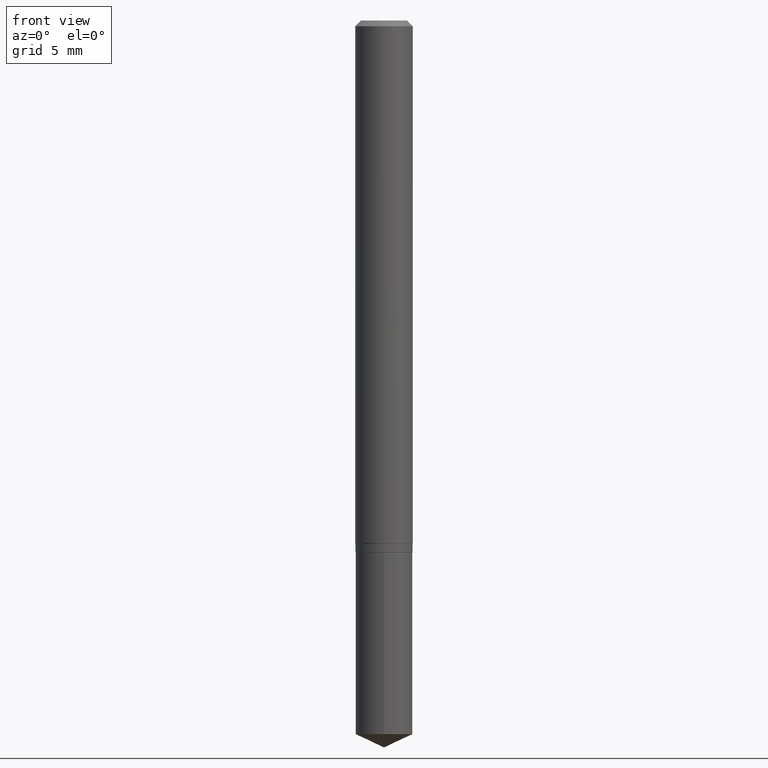
[diagram: clean part render]
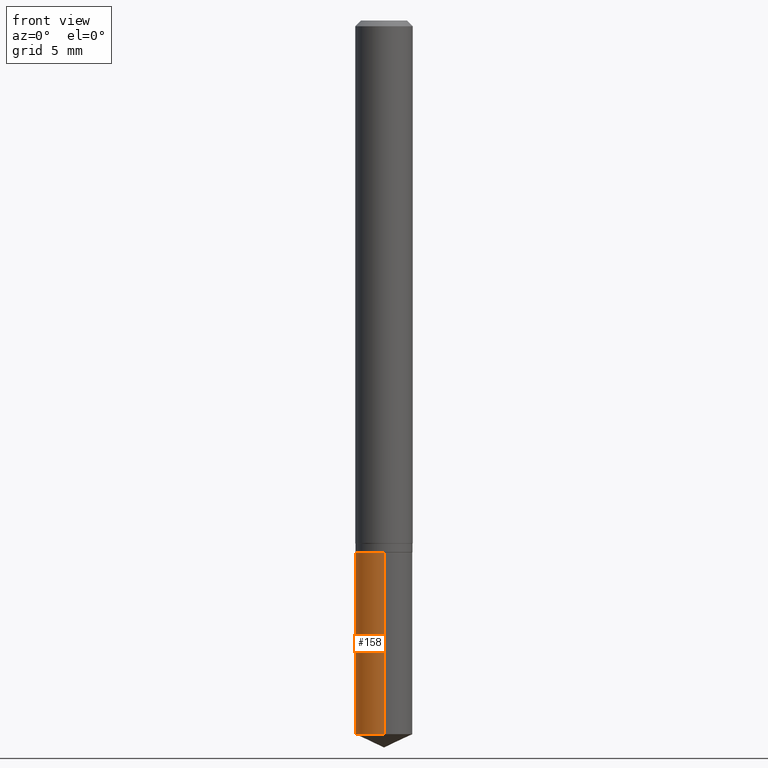
[diagram: same view with one face highlighted and labeled with its STEP entity id]
A machine part, front view. The second image highlights one B-rep face of the part: STEP entity #158.
In plain terms, the highlighted cylindrical surface (edge-blend (fillet) strip) has radius 1.4897 mm, axis along (-0, 0, 1).
Its self-contained STEP definition (entity closure, byte-faithful):
#24 = CARTESIAN_POINT ( 'NONE',  ( -4.095507610462727564E-16, -0.05865000000000382407, -1.094499999999999806 ) ) ;
#51 = DIRECTION ( 'NONE',  ( -6.982962677686266711E-15, -1.000000000000000000, 2.328941171069278199E-15 ) ) ;
#52 = DIRECTION ( 'NONE',  ( -2.445458899330790108E-29, 3.491495526022433205E-15, 1.000000000000000000 ) ) ;
#57 = AXIS2_PLACEMENT_3D ( 'NONE', #406, #52, #326 ) ;
#80 = CARTESIAN_POINT ( 'NONE',  ( 2.676565608369631794E-29, -3.821426325363822773E-15, -1.094499999999999806 ) ) ;
#83 = CARTESIAN_POINT ( 'NONE',  ( 4.167333145233346575E-16, 0.05864999999999617741, -1.094500000000000028 ) ) ;
#86 = CARTESIAN_POINT ( 'NONE',  ( 2.676565608369631794E-29, -3.821426325363822773E-15, -1.094499999999999806 ) ) ;
#137 = VERTEX_POINT ( 'NONE', #471 ) ;
#147 = ORIENTED_EDGE ( 'NONE', *, *, #208, .F. ) ;
#148 = DIRECTION ( 'NONE',  ( -2.445458899330790108E-29, 3.491495526022433599E-15, 1.000000000000000000 ) ) ;
#149 = EDGE_CURVE ( 'NONE', #373, #248, #306, .T. ) ;
#153 = AXIS2_PLACEMENT_3D ( 'NONE', #86, #242, #51 ) ;
#155 = ORIENTED_EDGE ( 'NONE', *, *, #334, .T. ) ;
#158 = ADVANCED_FACE ( 'NONE', ( #432 ), #189, .T. ) ;
#179 = DIRECTION ( 'NONE',  ( -2.445458899330790108E-29, 3.491495526022433205E-15, 1.000000000000000000 ) ) ;
#189 = CYLINDRICAL_SURFACE ( 'NONE', #210, 0.05865000000000000074 ) ;
#208 = EDGE_CURVE ( 'NONE', #248, #231, #335, .T. ) ;
#210 = AXIS2_PLACEMENT_3D ( 'NONE', #80, #179, #351 ) ;
#221 = CARTESIAN_POINT ( 'NONE',  ( 4.167333145233254377E-16, 0.05864999999999617741, -1.094500000000000028 ) ) ;
#231 = VERTEX_POINT ( 'NONE', #317 ) ;
#242 = DIRECTION ( 'NONE',  ( -2.445458899330790108E-29, 3.491495526022433205E-15, 1.000000000000000000 ) ) ;
#248 = VERTEX_POINT ( 'NONE', #83 ) ;
#260 = VECTOR ( 'NONE', #148, 39.37007874015748143 ) ;
#298 = ORIENTED_EDGE ( 'NONE', *, *, #440, .T. ) ;
#306 = LINE ( 'NONE', #221, #260 ) ;
#316 = EDGE_LOOP ( 'NONE', ( #380, #298, #155, #147 ) ) ;
#317 = CARTESIAN_POINT ( 'NONE',  ( -4.095507610462727564E-16, -0.05865000000000382407, -1.094499999999999806 ) ) ;
#323 = DIRECTION ( 'NONE',  ( -2.445458899330790108E-29, 3.491495526022433599E-15, 1.000000000000000000 ) ) ;
#326 = DIRECTION ( 'NONE',  ( -6.982962677686266711E-15, -1.000000000000000000, 4.657882342138556398E-15 ) ) ;
#334 = EDGE_CURVE ( 'NONE', #137, #231, #358, .T. ) ;
#335 = CIRCLE ( 'NONE', #153, 0.05865000000000000074 ) ;
#351 = DIRECTION ( 'NONE',  ( -6.982962677686266711E-15, -1.000000000000000000, 2.328941171069278199E-15 ) ) ;
#355 = CARTESIAN_POINT ( 'NONE',  ( 4.167333145233346575E-16, 0.05864999999999487984, -1.468751055849209841 ) ) ;
#358 = LINE ( 'NONE', #24, #397 ) ;
#373 = VERTEX_POINT ( 'NONE', #355 ) ;
#378 = CIRCLE ( 'NONE', #57, 0.05865000000000000074 ) ;
#380 = ORIENTED_EDGE ( 'NONE', *, *, #149, .F. ) ;
#397 = VECTOR ( 'NONE', #323, 39.37007874015748143 ) ;
#406 = CARTESIAN_POINT ( 'NONE',  ( 3.591781183480025262E-29, -5.128122212470508622E-15, -1.468751055849209397 ) ) ;
#432 = FACE_OUTER_BOUND ( 'NONE', #316, .T. ) ;
#440 = EDGE_CURVE ( 'NONE', #373, #137, #378, .T. ) ;
#471 = CARTESIAN_POINT ( 'NONE',  ( -4.095507610462636845E-16, -0.05865000000000514246, -1.468751055849209175 ) ) ;